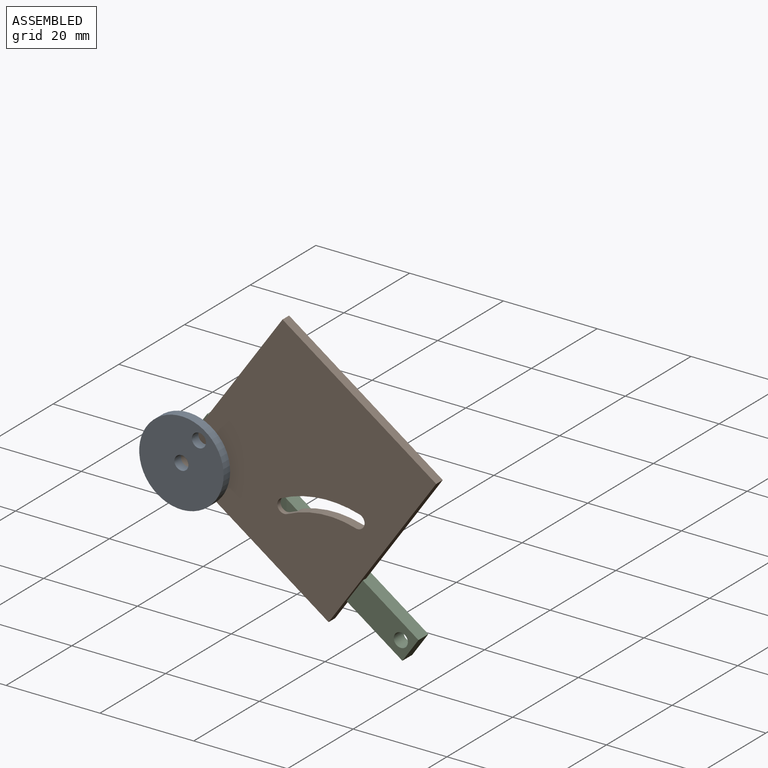
[diagram: assembled view]
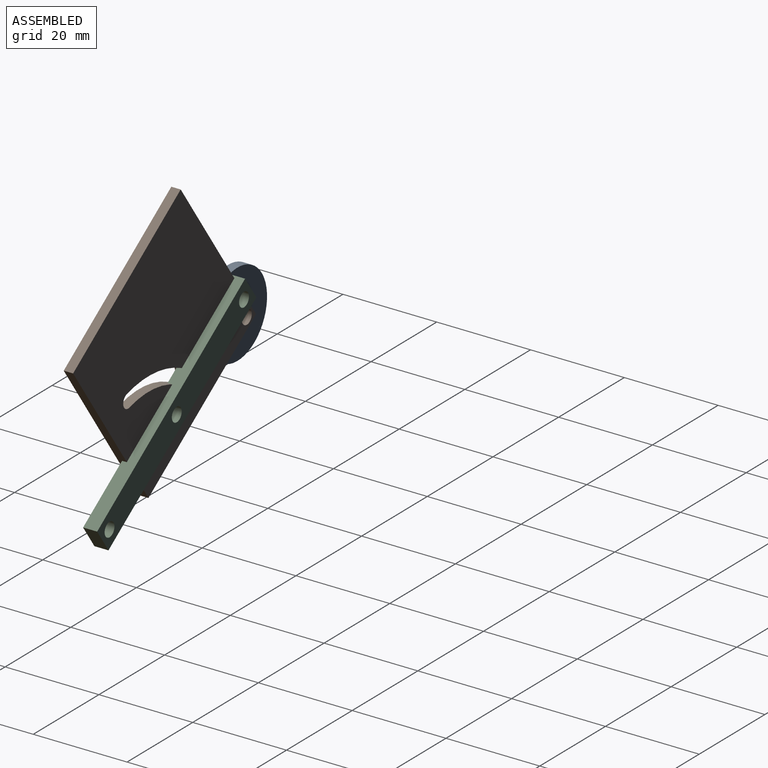
[diagram: assembled view, second angle]
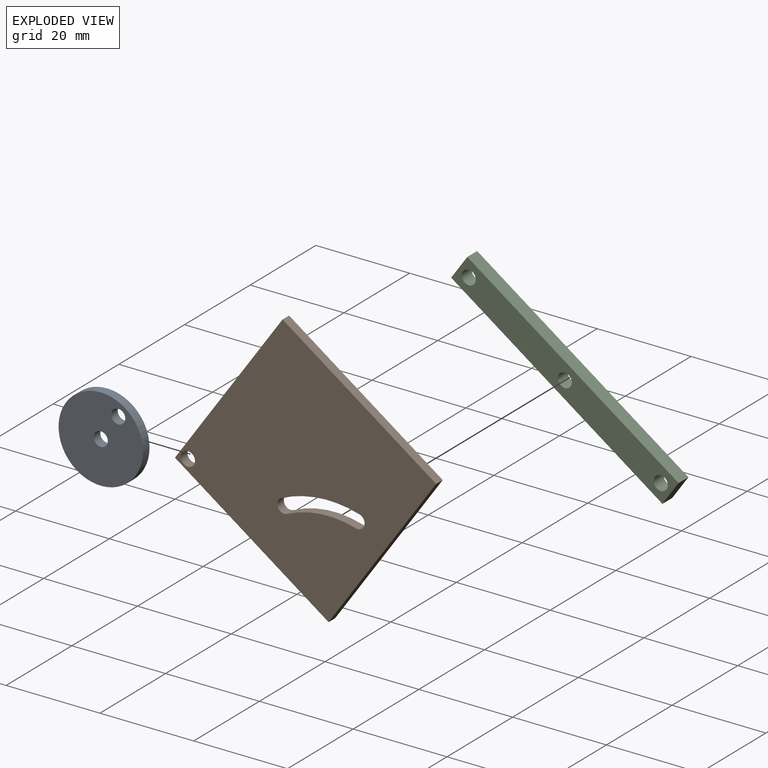
[diagram: exploded view]
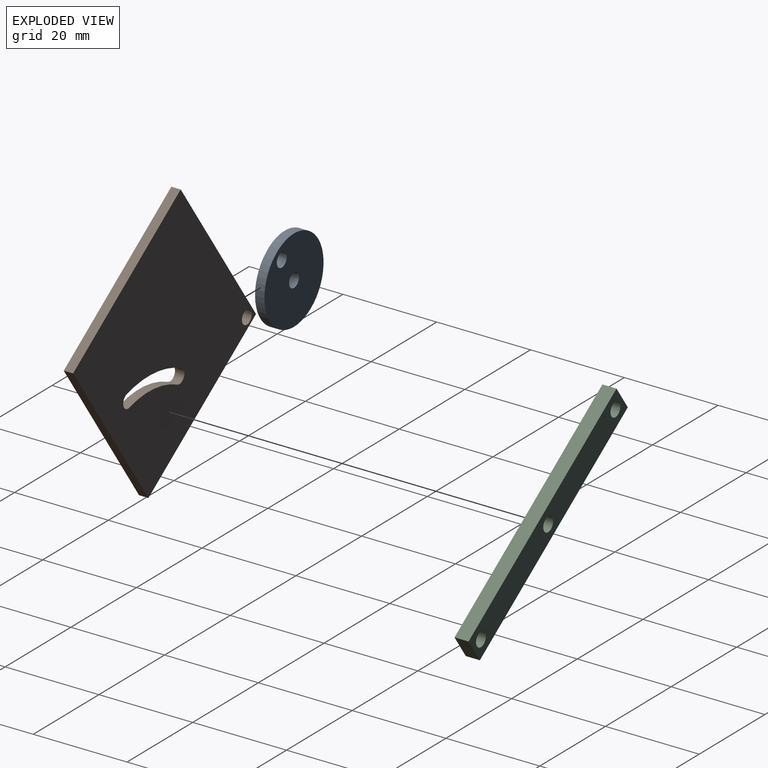
[diagram: exploded view, second angle]
ASSEMBLY  parts=3 mates=3
PART A: 5 faces, bbox 18x2x18 mm
  f0: cylinder r=1.5mm len=3mm, axis (0,1,0), area 18.8mm2, adj f3,f4
  f1: cylinder r=1.5mm len=3mm, axis (0,1,0), area 18.8mm2, adj f3,f4
  f2: cylinder r=9mm len=18mm, axis (0,1,0), area 113.1mm2, adj f3,f4
  f3: plane 18x18mm, normal (0,-1,0), area 240.3mm2, adj f0,f1,f2
  f4: plane 18x18mm, normal (0,1,0), area 240.3mm2, adj f0,f1,f2
PART B: 11 faces, bbox 40x2x40 mm
  f0: cylinder r=1.5mm len=2.81mm, axis (0,1,0), area 9.4mm2, adj f1,f8,f9,f10
  f1: cylinder r=23.47mm len=12.91mm, axis (0,1,0), area 34.2mm2, adj f0,f2,f9,f10
  f2: cylinder r=1.5mm len=2.92mm, axis (0,1,0), area 9.4mm2, adj f1,f8,f9,f10
  f3: plane 40x2mm, normal (-1,0,0), area 80mm2, adj f4,f7,f9,f10
  f4: plane 40x2mm, normal (0,0,-1), area 80mm2, adj f3,f5,f9,f10
  f5: plane 40x2mm, normal (1,0,0), area 80mm2, adj f4,f7,f9,f10
  f6: cylinder r=1.5mm len=3mm, axis (0,1,0), area 18.8mm2, adj f9,f10
  f7: plane 40x2mm, normal (0,0,1), area 80mm2, adj f3,f5,f9,f10
  f8: cylinder r=20.47mm len=11.26mm, axis (0,1,0), area 29.9mm2, adj f0,f2,f9,f10
  f9: plane 40x40mm, normal (0,-1,0), area 1537.8mm2, adj f0,f1,f2,f3,f4,f5,f6,f7
  f10: plane 40x40mm, normal (0,1,0), area 1537.8mm2, adj f0,f1,f2,f3,f4,f5,f6,f7
PART C: 9 faces, bbox 55x3x6 mm
  f0: plane 6x3mm, normal (-1,0,0), area 18mm2, adj f1,f5,f7,f8
  f1: plane 55x3mm, normal (0,0,-1), area 165mm2, adj f0,f2,f7,f8
  f2: plane 6x3mm, normal (1,0,0), area 18mm2, adj f1,f5,f7,f8
  f3: cylinder r=1.5mm len=3mm, axis (0,1,0), area 28.3mm2, adj f7,f8
  f4: cylinder r=1.5mm len=3mm, axis (0,1,0), area 28.3mm2, adj f7,f8
  f5: plane 55x3mm, normal (0,0,1), area 165mm2, adj f0,f2,f7,f8
  f6: cylinder r=1.5mm len=3mm, axis (0,1,0), area 28.3mm2, adj f7,f8
  f7: plane 55x6mm, normal (0,-1,0), area 308.8mm2, adj f0,f1,f2,f3,f4,f5,f6
  f8: plane 55x6mm, normal (0,1,0), area 308.8mm2, adj f0,f1,f2,f3,f4,f5,f6
PLACE A rot(axis=(0,1,0),35deg) t=(-32.55,4.76,-15.41)mm
PLACE B rot(axis=(0,1,0),35deg) t=(-35.34,6.76,-15.91)mm
PLACE C rot(axis=(0,1,0),35deg) t=(-28.83,8.76,-10.09)mm
MATE slider A.f1 <-> B.f6  axis (0,1,0) through (-32.55,3.76,-15.41)mm
MATE slider A.f0 <-> C.f4  axis (0,1,0) through (-28.83,3.76,-10.09)mm
MATE planar A.f4 <-> B.f9  axis (0,1,0) through (-32.66,4.76,-15.57)mm
